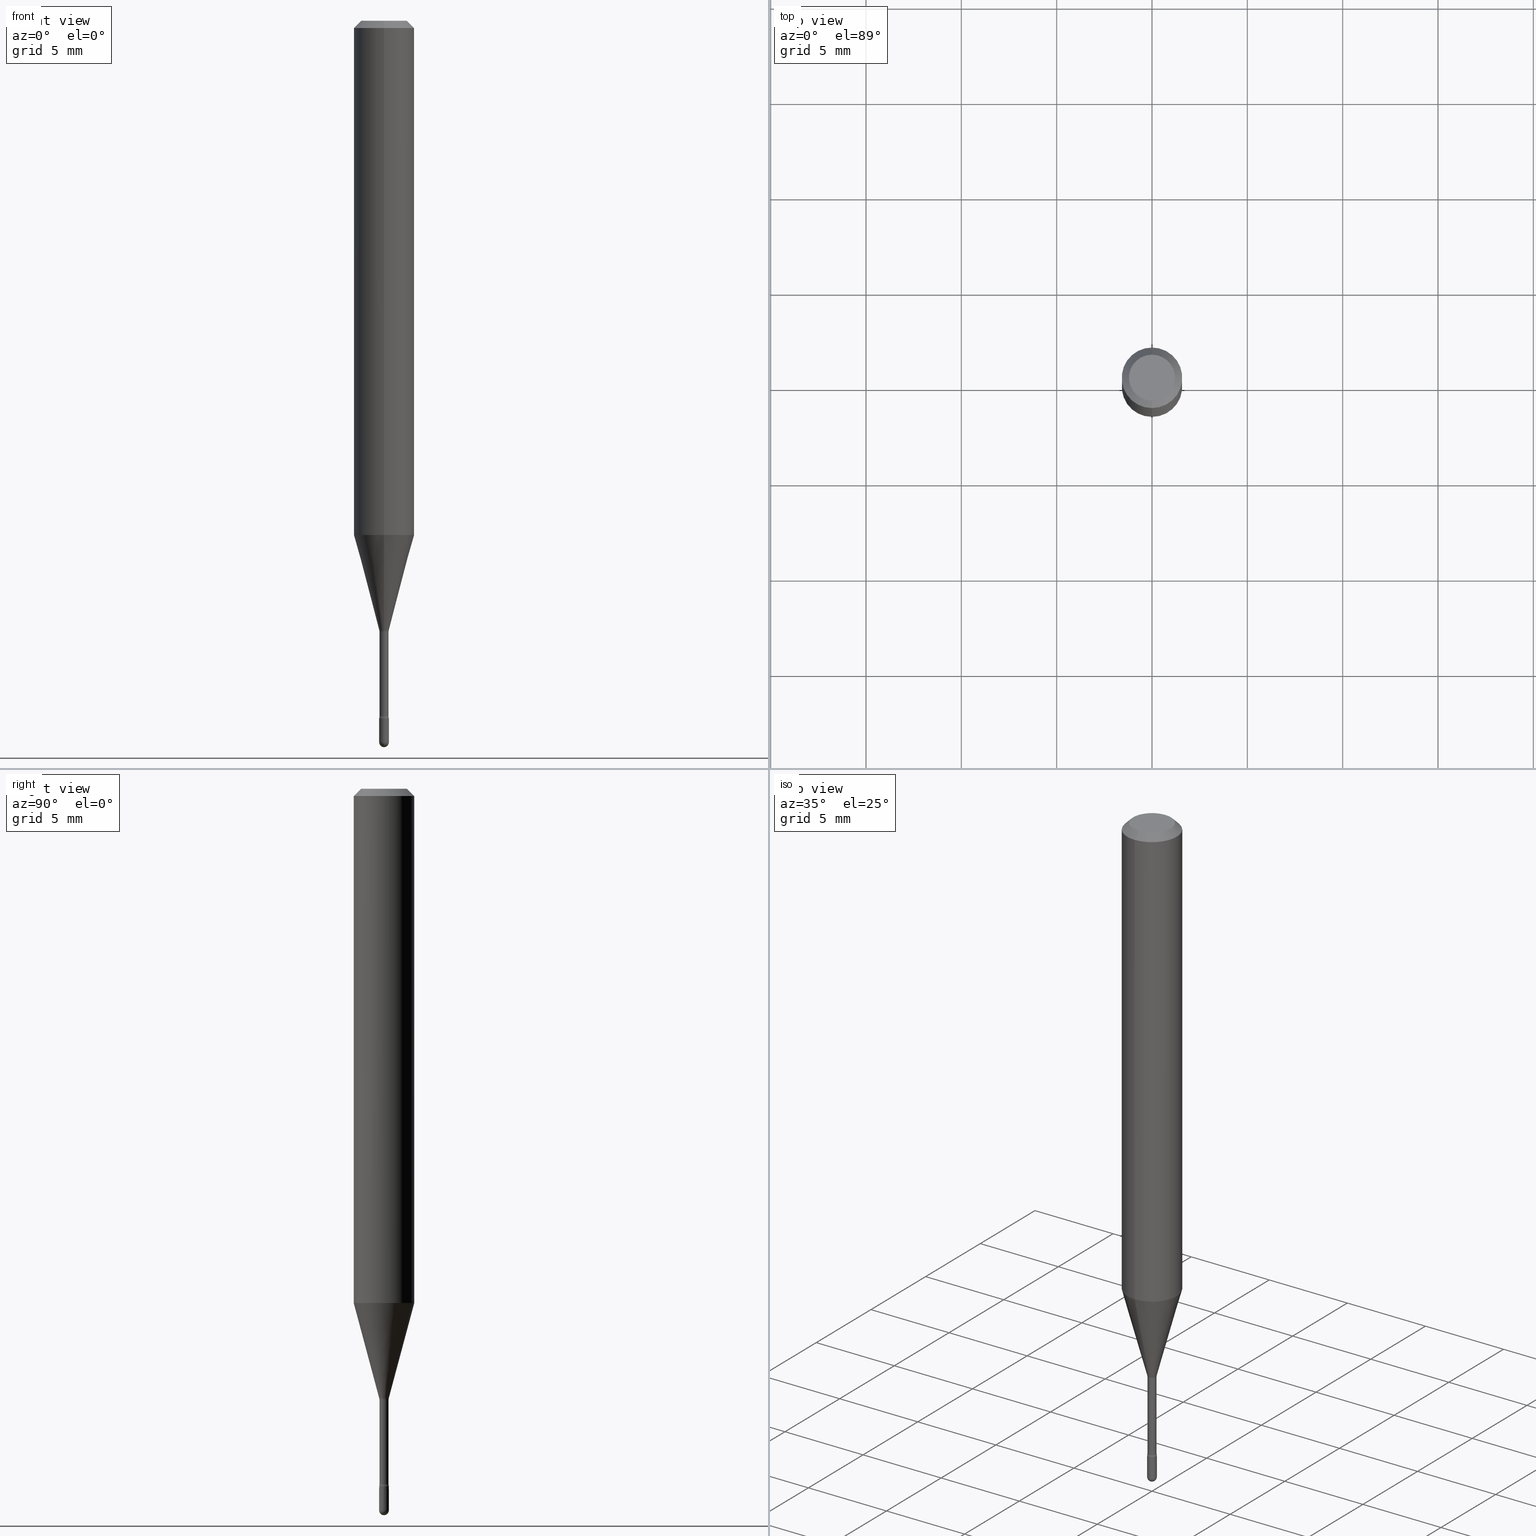
[diagram: canonical four-view strip — front | top / right | iso, engineering-drawing reading convention]
A machine part, canonical four-view strip (front | top / right | iso — engineering-drawing reading convention). The complete STEP part file that produces these views, byte-faithful:
ISO-10303-21;
HEADER;
FILE_DESCRIPTION (( 'STEP AP203' ),
    '1' );
FILE_NAME ('04568.STEP',
    '2024-04-09T22:00:09',
    ( '' ),
    ( '' ),
    'SwSTEP 2.0',
    'SolidWorks 2023',
    '' );
FILE_SCHEMA (( 'CONFIG_CONTROL_DESIGN' ));
ENDSEC;

DATA;
#1 = DIRECTION ( 'NONE',  ( 1.000000000000000000, -6.982962677686235945E-15, 0.000000000000000000 ) ) ;
#2 = PLANE ( 'NONE',  #291 ) ;
#3 = DIMENSIONAL_EXPONENTS ( 1.000000000000000000, 0.000000000000000000, 0.000000000000000000, 0.000000000000000000, 0.000000000000000000, 0.000000000000000000, 0.000000000000000000 ) ;
#4 = CARTESIAN_POINT ( 'NONE',  ( 3.521475080906597305E-29, -5.027733127934130649E-15, -1.440000000000000169 ) ) ;
#5 = CC_DESIGN_PERSON_AND_ORGANIZATION_ASSIGNMENT ( #52, #392, ( #372 ) ) ;
#6 = DIRECTION ( 'NONE',  ( 1.000000000000000000, -6.982962677686265922E-15, 4.876176775795935793E-29 ) ) ;
#7 = CIRCLE ( 'NONE', #519, 0.01000000000000000021 ) ;
#8 = ORIENTED_EDGE ( 'NONE', *, *, #242, .F. ) ;
#9 = CIRCLE ( 'NONE', #414, 0.01000000000000000021 ) ;
#10 = CARTESIAN_POINT ( 'NONE',  ( -1.703842893355140225E-16, -0.02440000000000440775, -1.261974787463811198 ) ) ;
#11 = ADVANCED_FACE ( 'NONE', ( #312 ), #396, .T. ) ;
#12 = AXIS2_PLACEMENT_3D ( 'NONE', #558, #160, #455 ) ;
#13 = APPROVAL ( #308, 'UNSPECIFIED' ) ;
#14 = AXIS2_PLACEMENT_3D ( 'NONE', #177, #132, #478 ) ;
#15 = AXIS2_PLACEMENT_3D ( 'NONE', #487, #140, #540 ) ;
#16 = DIRECTION ( 'NONE',  ( 1.000000000000000000, -7.105427357601001070E-15, 4.926313775280746513E-29 ) ) ;
#17 = CARTESIAN_POINT ( 'NONE',  ( 6.982962677689787249E-17, 0.009999999999994971245, -1.440000000000000169 ) ) ;
#18 = ORIENTED_EDGE ( 'NONE', *, *, #63, .F. ) ;
#19 = EDGE_CURVE ( 'NONE', #24, #464, #66, .T. ) ;
#20 = EDGE_LOOP ( 'NONE', ( #174, #342, #142, #534 ) ) ;
#21 = AXIS2_PLACEMENT_3D ( 'NONE', #419, #287, #6 ) ;
#22 = FACE_OUTER_BOUND ( 'NONE', #20, .T. ) ;
#23 = CYLINDRICAL_SURFACE ( 'NONE', #50, 0.01000000000000000021 ) ;
#24 = VERTEX_POINT ( 'NONE', #29 ) ;
#25 = EDGE_LOOP ( 'NONE', ( #361, #94, #279, #454 ) ) ;
#26 = CARTESIAN_POINT ( 'NONE',  ( -4.364351673553657356E-16, -0.06250000000000371925, -1.061828102118092865 ) ) ;
#27 = DIRECTION ( 'NONE',  ( -6.982962677686265922E-15, -1.000000000000000000, 3.491339807314435149E-15 ) ) ;
#28 = VERTEX_POINT ( 'NONE', #195 ) ;
#29 = CARTESIAN_POINT ( 'NONE',  ( 2.572559502513342919E-16, 0.009911112605659591623, -1.258092501787273276 ) ) ;
#30 = FACE_OUTER_BOUND ( 'NONE', #49, .T. ) ;
#31 = ORIENTED_EDGE ( 'NONE', *, *, #36, .T. ) ;
#32 = ORIENTED_EDGE ( 'NONE', *, *, #479, .F. ) ;
#33 = CIRCLE ( 'NONE', #304, 0.01500000000000003240 ) ;
#34 = CIRCLE ( 'NONE', #42, 0.009911112605663983943 ) ;
#35 = FACE_OUTER_BOUND ( 'NONE', #183, .T. ) ;
#36 = EDGE_CURVE ( 'NONE', #198, #250, #318, .T. ) ;
#37 = VERTEX_POINT ( 'NONE', #449 ) ;
#38 = PRODUCT_RELATED_PRODUCT_CATEGORY ( 'detail', '', ( #207 ) ) ;
#39 = CLOSED_SHELL ( 'NONE', ( #45, #437, #467, #219, #133 ) ) ;
#40 = CARTESIAN_POINT ( 'NONE',  ( 4.440892098500884514E-16, 0.06249999999999629463, -1.061828102118093309 ) ) ;
#41 = AXIS2_PLACEMENT_3D ( 'NONE', #326, #505, #116 ) ;
#42 = AXIS2_PLACEMENT_3D ( 'NONE', #293, #330, #288 ) ;
#43 = ADVANCED_FACE ( 'NONE', ( #367 ), #283, .F. ) ;
#44 = AXIS2_PLACEMENT_3D ( 'NONE', #48, #384, #125 ) ;
#45 = ADVANCED_FACE ( 'NONE', ( #189 ), #565, .T. ) ;
#46 = CC_DESIGN_SECURITY_CLASSIFICATION ( #306, ( #372 ) ) ;
#47 = CARTESIAN_POINT ( 'NONE',  ( -6.920892941966669973E-17, -0.009911112605668376263, -1.258092501787273276 ) ) ;
#48 = CARTESIAN_POINT ( 'NONE',  ( 3.086119976934868225E-29, -4.406161420520441844E-15, -1.261974787463811198 ) ) ;
#49 = EDGE_LOOP ( 'NONE', ( #260, #65, #213, #8 ) ) ;
#50 = AXIS2_PLACEMENT_3D ( 'NONE', #453, #102, #395 ) ;
#51 = EDGE_CURVE ( 'NONE', #198, #321, #381, .T. ) ;
#52 = PERSON_AND_ORGANIZATION ( #72, #90 ) ;
#53 = DIRECTION ( 'NONE',  ( -6.982962677686269866E-15, -1.000000000000000000, 0.000000000000000000 ) ) ;
#54 = CARTESIAN_POINT ( 'NONE',  ( 3.086244699087185393E-29, -4.405982811299579064E-15, -1.261974787463811198 ) ) ;
#55 = PRODUCT_DEFINITION ( 'UNKNOWN', '', #372, #335 ) ;
#56 = CARTESIAN_POINT ( 'NONE',  ( 6.892264536876495998E-17, 0.009399999999994973141, -1.435799999999999965 ) ) ;
#57 = DIRECTION ( 'NONE',  ( 6.982962677686265922E-15, 1.000000000000000000, -3.483106191921935554E-15 ) ) ;
#58 = CARTESIAN_POINT ( 'NONE',  ( 4.440892098500625669E-16, 0.06250000000000000000, 2.598646609340937925E-16 ) ) ;
#59 = DIRECTION ( 'NONE',  ( -2.445567637123405880E-29, 3.491339807314436332E-15, 1.000000000000000000 ) ) ;
#60 = ORIENTED_EDGE ( 'NONE', *, *, #508, .T. ) ;
#61 = AXIS2_PLACEMENT_3D ( 'NONE', #113, #441, #336 ) ;
#62 = AXIS2_PLACEMENT_3D ( 'NONE', #270, #97, #497 ) ;
#63 = EDGE_CURVE ( 'NONE', #250, #130, #82, .T. ) ;
#64 = DIRECTION ( 'NONE',  ( -6.982962677686265922E-15, -1.000000000000000000, 3.483106191921935554E-15 ) ) ;
#65 = ORIENTED_EDGE ( 'NONE', *, *, #500, .T. ) ;
#66 = LINE ( 'NONE', #491, #421 ) ;
#67 = CARTESIAN_POINT ( 'NONE',  ( 3.643748521215853910E-29, -5.202307194876288105E-15, -1.490000000000000213 ) ) ;
#68 = CARTESIAN_POINT ( 'NONE',  ( -6.563984917025085146E-17, -0.009399999999999993430, 5.108919930800017380E-16 ) ) ;
#69 = ORIENTED_EDGE ( 'NONE', *, *, #87, .T. ) ;
#70 = EDGE_CURVE ( 'NONE', #28, #320, #337, .T. ) ;
#71 = ORIENTED_EDGE ( 'NONE', *, *, #281, .T. ) ;
#72 = PERSON ( 'UNSPECIFIED', 'UNSPECIFIED', 'UNSPECIFIED', ('UNSPECIFIED'), ('UNSPECIFIED'), ('UNSPECIFIED') ) ;
#73 = LOCAL_TIME ( 18, 0, 9.000000000000000000, #223 ) ;
#74 = EDGE_CURVE ( 'NONE', #458, #464, #422, .T. ) ;
#75 = ORIENTED_EDGE ( 'NONE', *, *, #557, .F. ) ;
#76 = CARTESIAN_POINT ( 'NONE',  ( -6.920892941966669973E-17, -0.009911112605668376263, -1.258092501787273276 ) ) ;
#77 =( LENGTH_UNIT ( ) NAMED_UNIT ( * ) SI_UNIT ( $, .METRE. ) );
#78 = EDGE_CURVE ( 'NONE', #307, #158, #245, .T. ) ;
#79 =( CONVERSION_BASED_UNIT ( 'INCH', #420 ) LENGTH_UNIT ( ) NAMED_UNIT ( #3 ) );
#80 = VECTOR ( 'NONE', #528, 39.37007874015748143 ) ;
#81 = CIRCLE ( 'NONE', #178, 0.01500000000000003240 ) ;
#82 = LINE ( 'NONE', #243, #346 ) ;
#83 = EDGE_LOOP ( 'NONE', ( #69, #374, #221, #104 ) ) ;
#84 = DATE_AND_TIME ( #473, #465 ) ;
#85 = EDGE_CURVE ( 'NONE', #316, #158, #126, .T. ) ;
#86 = CARTESIAN_POINT ( 'NONE',  ( 2.596772442728175058E-29, -3.707202721450037054E-15, -1.061828102118093087 ) ) ;
#87 = EDGE_CURVE ( 'NONE', #227, #316, #564, .T. ) ;
#88 = AXIS2_PLACEMENT_3D ( 'NONE', #445, #448, #27 ) ;
#89 = CARTESIAN_POINT ( 'NONE',  ( 6.679101716144937079E-17, 0.009399999999999993430, 4.452548047024903884E-16 ) ) ;
#90 = ORGANIZATION ( 'UNSPECIFIED', 'UNSPECIFIED', '' ) ;
#91 = DATE_AND_TIME ( #535, #259 ) ;
#92 = DIRECTION ( 'NONE',  ( -2.445468806185136877E-29, 3.491481338843145188E-15, 1.000000000000000000 ) ) ;
#93 = EDGE_CURVE ( 'NONE', #37, #253, #122, .T. ) ;
#94 = ORIENTED_EDGE ( 'NONE', *, *, #538, .F. ) ;
#95 = CONICAL_SURFACE ( 'NONE', #369, 0.009911112605663983943, 0.2617993877991496854 ) ;
#96 = PERSON_AND_ORGANIZATION_ROLE ( 'classification_officer' ) ;
#97 = DIRECTION ( 'NONE',  ( 1.000000000000000000, -7.105427357601001070E-15, 4.926313775280746513E-29 ) ) ;
#98 = CARTESIAN_POINT ( 'NONE',  ( 6.679101716148456138E-17, 0.009399999999995595906, -1.261974787463811198 ) ) ;
#99 = CARTESIAN_POINT ( 'NONE',  ( 3.668351455685129279E-31, -5.237009710971683760E-17, -0.01500000000000008271 ) ) ;
#100 = ORIENTED_EDGE ( 'NONE', *, *, #244, .T. ) ;
#101 = EDGE_CURVE ( 'NONE', #237, #143, #7, .T. ) ;
#102 = DIRECTION ( 'NONE',  ( -2.445468806185136597E-29, 3.491481338843145583E-15, 1.000000000000000000 ) ) ;
#103 = ORIENTED_EDGE ( 'NONE', *, *, #385, .T. ) ;
#104 = ORIENTED_EDGE ( 'NONE', *, *, #179, .F. ) ;
#105 = CLOSED_SHELL ( 'NONE', ( #290, #11, #383, #343, #172, #340, #203, #492, #138, #240, #109, #332, #405, #43 ) ) ;
#106 = AXIS2_PLACEMENT_3D ( 'NONE', #435, #348, #533 ) ;
#107 = AXIS2_PLACEMENT_3D ( 'NONE', #86, #428, #252 ) ;
#108 = AXIS2_PLACEMENT_3D ( 'NONE', #163, #334, #563 ) ;
#109 = ADVANCED_FACE ( 'NONE', ( #311 ), #323, .F. ) ;
#110 = DIRECTION ( 'NONE',  ( -2.445567637123405880E-29, 3.491339807314436332E-15, 1.000000000000000000 ) ) ;
#111 = ORIENTED_EDGE ( 'NONE', *, *, #363, .T. ) ;
#112 = CYLINDRICAL_SURFACE ( 'NONE', #322, 0.009399999999999993430 ) ;
#113 = CARTESIAN_POINT ( 'NONE',  ( 3.643748521215853910E-29, -5.202307194876288105E-15, -1.490000000000000213 ) ) ;
#114 = ORIENTED_EDGE ( 'NONE', *, *, #479, .T. ) ;
#115 = UNCERTAINTY_MEASURE_WITH_UNIT (LENGTH_MEASURE( 1.000000000000000082E-05 ), #79, 'distance_accuracy_value', 'NONE');
#116 = DIRECTION ( 'NONE',  ( -6.982962677686266711E-15, -1.000000000000000000, 3.491339807314436727E-15 ) ) ;
#117 = DATE_TIME_ROLE ( 'creation_date' ) ;
#118 = CIRCLE ( 'NONE', #432, 0.01500000000000002720 ) ;
#119 = CARTESIAN_POINT ( 'NONE',  ( 3.643748521215853910E-29, -5.202307194876288105E-15, -1.490000000000000213 ) ) ;
#120 = DIRECTION ( 'NONE',  ( -6.982962677686266711E-15, -1.000000000000000000, 3.491339807314436727E-15 ) ) ;
#121 = DIRECTION ( 'NONE',  ( 1.000000000000000000, -6.982962677686265922E-15, 4.876176775795935793E-29 ) ) ;
#122 = CIRCLE ( 'NONE', #106, 0.01000000000000000021 ) ;
#123 = APPROVAL_PERSON_ORGANIZATION ( #517, #524, #338 ) ;
#124 = DIRECTION ( 'NONE',  ( 4.937700262164548042E-15, 0.7071067811865451302, -0.7071067811865499042 ) ) ;
#125 = DIRECTION ( 'NONE',  ( -6.982962677686265922E-15, -1.000000000000000000, 3.491339807314436332E-15 ) ) ;
#126 = LINE ( 'NONE', #89, #80 ) ;
#127 = DIRECTION ( 'NONE',  ( 0.000000000000000000, 0.000000000000000000, 1.000000000000000000 ) ) ;
#128 = CIRCLE ( 'NONE', #275, 0.01000000000000000021 ) ;
#129 = ORIENTED_EDGE ( 'NONE', *, *, #484, .T. ) ;
#130 = VERTEX_POINT ( 'NONE', #147 ) ;
#131 = DIRECTION ( 'NONE',  ( 1.000000000000000000, -6.982962677686235945E-15, 0.000000000000000000 ) ) ;
#132 = DIRECTION ( 'NONE',  ( -2.445567637123405880E-29, 3.491339807314436332E-15, 1.000000000000000000 ) ) ;
#133 = ADVANCED_FACE ( 'NONE', ( #314 ), #23, .T. ) ;
#134 = PERSON_AND_ORGANIZATION_ROLE ( 'design_supplier' ) ;
#135 = ORIENTED_EDGE ( 'NONE', *, *, #391, .F. ) ;
#136 = AXIS2_PLACEMENT_3D ( 'NONE', #17, #545, #141 ) ;
#137 = APPROVAL_PERSON_ORGANIZATION ( #542, #13, #389 ) ;
#138 = ADVANCED_FACE ( 'NONE', ( #490 ), #463, .T. ) ;
#139 = PERSON_AND_ORGANIZATION ( #72, #90 ) ;
#140 = DIRECTION ( 'NONE',  ( -2.445567637123405880E-29, 3.491339807314436332E-15, 1.000000000000000000 ) ) ;
#141 = DIRECTION ( 'NONE',  ( -6.982962677686265922E-15, -1.000000000000000000, 3.491339807314436332E-15 ) ) ;
#142 = ORIENTED_EDGE ( 'NONE', *, *, #179, .T. ) ;
#143 = VERTEX_POINT ( 'NONE', #182 ) ;
#144 = PERSON_AND_ORGANIZATION ( #72, #90 ) ;
#145 = APPROVAL ( #309, 'UNSPECIFIED' ) ;
#146 = FACE_OUTER_BOUND ( 'NONE', #388, .T. ) ;
#147 = CARTESIAN_POINT ( 'NONE',  ( 4.440892098500887472E-16, 0.06249999999999995837, -0.01500000000000030129 ) ) ;
#148 = ORIENTED_EDGE ( 'NONE', *, *, #74, .T. ) ;
#149 = PERSON_AND_ORGANIZATION ( #72, #90 ) ;
#150 = CARTESIAN_POINT ( 'NONE',  ( 1.733724275254997086E-16, 0.02439999999999501248, -1.435799999999999965 ) ) ;
#151 = ORIENTED_EDGE ( 'NONE', *, *, #93, .F. ) ;
#152 = AXIS2_PLACEMENT_3D ( 'NONE', #99, #263, #64 ) ;
#153 = CIRCLE ( 'NONE', #62, 0.01500000000000002720 ) ;
#154 = PERSON_AND_ORGANIZATION ( #72, #90 ) ;
#155 = DIRECTION ( 'NONE',  ( -6.982962677686265922E-15, -1.000000000000000000, 3.483106191921935554E-15 ) ) ;
#156 = FACE_OUTER_BOUND ( 'NONE', #504, .T. ) ;
#157 = FACE_OUTER_BOUND ( 'NONE', #402, .T. ) ;
#158 = VERTEX_POINT ( 'NONE', #98 ) ;
#159 = DIRECTION ( 'NONE',  ( -2.445468806185136597E-29, 3.491481338843145583E-15, 1.000000000000000000 ) ) ;
#160 = DIRECTION ( 'NONE',  ( -2.445567637123405880E-29, 3.491339807314436332E-15, 1.000000000000000000 ) ) ;
#161 = CARTESIAN_POINT ( 'NONE',  ( 3.643748521215853910E-29, -5.202307194876288105E-15, -1.490000000000000213 ) ) ;
#162 = VECTOR ( 'NONE', #394, 39.37007874015748143 ) ;
#163 = CARTESIAN_POINT ( 'NONE',  ( -1.169113584055446105E-44, 1.669184350826100908E-30, 4.780733988912460139E-16 ) ) ;
#164 = EDGE_CURVE ( 'NONE', #130, #321, #451, .T. ) ;
#165 = CARTESIAN_POINT ( 'NONE',  ( 3.521475080906597305E-29, -5.027733127934130649E-15, -1.440000000000000169 ) ) ;
#166 = DIRECTION ( 'NONE',  ( -2.445567637123405880E-29, 3.491339807314436332E-15, 1.000000000000000000 ) ) ;
#167 = PRODUCT_DEFINITION_SHAPE ( 'NONE', 'NONE',  #55 ) ;
#168 = AXIS2_PLACEMENT_3D ( 'NONE', #161, #159, #536 ) ;
#169 = AXIS2_PLACEMENT_3D ( 'NONE', #523, #127, #480 ) ;
#170 = DIRECTION ( 'NONE',  ( -1.000000000000000000, 7.105427357601001070E-15, -4.926315508542082329E-29 ) ) ;
#171 = ORIENTED_EDGE ( 'NONE', *, *, #51, .T. ) ;
#172 = ADVANCED_FACE ( 'NONE', ( #498 ), #266, .T. ) ;
#173 = DIRECTION ( 'NONE',  ( -6.982962677686265133E-15, -1.000000000000000000, 0.000000000000000000 ) ) ;
#174 = ORIENTED_EDGE ( 'NONE', *, *, #85, .F. ) ;
#175 = EDGE_CURVE ( 'NONE', #316, #227, #470, .T. ) ;
#176 = VECTOR ( 'NONE', #426, 39.37007874015748143 ) ;
#177 = CARTESIAN_POINT ( 'NONE',  ( 3.511346013381786703E-29, -5.012865695342067966E-15, -1.435799999999999965 ) ) ;
#178 = AXIS2_PLACEMENT_3D ( 'NONE', #150, #16, #502 ) ;
#179 = EDGE_CURVE ( 'NONE', #227, #307, #277, .T. ) ;
#180 = DIRECTION ( 'NONE',  ( -2.445567637123405880E-29, 3.491339807314436332E-15, 1.000000000000000000 ) ) ;
#181 = DIRECTION ( 'NONE',  ( -1.000000000000000000, 6.982962677686265133E-15, -4.883557194083112340E-29 ) ) ;
#182 = CARTESIAN_POINT ( 'NONE',  ( 7.105427357604538322E-17, 0.009999999999994993796, -1.440000000000000169 ) ) ;
#183 = EDGE_LOOP ( 'NONE', ( #359, #488, #552, #461 ) ) ;
#184 = DATE_AND_TIME ( #393, #73 ) ;
#185 = MANIFOLD_SOLID_BREP ( 'Body-Move/Copy2[1]', #39 ) ;
#186 = CARTESIAN_POINT ( 'NONE',  ( -6.563984917021568552E-17, -0.009400000000004999842, -1.435799999999999965 ) ) ;
#187 = TOROIDAL_SURFACE ( 'NONE', #510, 0.02440000000000002237, 0.01500000000000003587 ) ;
#188 = ORIENTED_EDGE ( 'NONE', *, *, #202, .T. ) ;
#189 = FACE_OUTER_BOUND ( 'NONE', #345, .T. ) ;
#190 = APPLICATION_CONTEXT ( 'configuration controlled 3d designs of mechanical parts and assemblies' ) ;
#191 = CARTESIAN_POINT ( 'NONE',  ( 3.668630792422295430E-29, -5.236609684865145574E-15, -1.500000000000000222 ) ) ;
#192 = CARTESIAN_POINT ( 'NONE',  ( 3.521617397457705611E-29, -5.027529322532788603E-15, -1.440000000000000169 ) ) ;
#193 = CARTESIAN_POINT ( 'NONE',  ( 3.511346013381786703E-29, -5.012865695342067966E-15, -1.435799999999999965 ) ) ;
#194 = ORIENTED_EDGE ( 'NONE', *, *, #274, .F. ) ;
#195 = CARTESIAN_POINT ( 'NONE',  ( 0.01000000000000000021, -5.097562754710993158E-15, -1.440000000000000169 ) ) ;
#196 = CARTESIAN_POINT ( 'NONE',  ( 0.01000000000000000021, -6.982962677686265724E-17, 4.876176775795935968E-31 ) ) ;
#197 = CARTESIAN_POINT ( 'NONE',  ( 3.076750306878576560E-29, -4.392428432773716738E-15, -1.258092501787273276 ) ) ;
#198 = VERTEX_POINT ( 'NONE', #225 ) ;
#199 = CIRCLE ( 'NONE', #168, 0.01000000000000000021 ) ;
#200 = AXIS2_PLACEMENT_3D ( 'NONE', #378, #416, #155 ) ;
#201 = ORIENTED_EDGE ( 'NONE', *, *, #508, .F. ) ;
#202 = EDGE_CURVE ( 'NONE', #158, #307, #209, .T. ) ;
#203 = ADVANCED_FACE ( 'NONE', ( #30 ), #95, .T. ) ;
#204 = CONICAL_SURFACE ( 'NONE', #531, 0.06250000000000000000, 0.7853981633974483900 ) ;
#205 = EDGE_CURVE ( 'NONE', #458, #321, #354, .T. ) ;
#206 = DIRECTION ( 'NONE',  ( 6.982962677686265922E-15, 1.000000000000000000, -3.491339807314436332E-15 ) ) ;
#207 = PRODUCT ( '04568', '04568', '', ( #296 ) ) ;
#208 = CC_DESIGN_PERSON_AND_ORGANIZATION_ASSIGNMENT ( #154, #376, ( #55 ) ) ;
#209 = CIRCLE ( 'NONE', #216, 0.009400000000000002104 ) ;
#210 = AXIS2_PLACEMENT_3D ( 'NONE', #443, #269, #450 ) ;
#211 = DIRECTION ( 'NONE',  ( -1.000000000000000000, 6.982962677686265922E-15, -4.883557194083112340E-29 ) ) ;
#212 = ORIENTED_EDGE ( 'NONE', *, *, #363, .F. ) ;
#213 = ORIENTED_EDGE ( 'NONE', *, *, #560, .T. ) ;
#214 = CARTESIAN_POINT ( 'NONE',  ( 6.982962677689890787E-17, 0.009999999999994771752, -1.490000000000000213 ) ) ;
#215 = ORIENTED_EDGE ( 'NONE', *, *, #391, .T. ) ;
#216 = AXIS2_PLACEMENT_3D ( 'NONE', #54, #370, #408 ) ;
#217 = CIRCLE ( 'NONE', #210, 0.009911112605663983943 ) ;
#218 = DIRECTION ( 'NONE',  ( -6.982962677686265922E-15, -1.000000000000000000, 3.491339807314436332E-15 ) ) ;
#219 = ADVANCED_FACE ( 'NONE', ( #157 ), #503, .T. ) ;
#220 = DIRECTION ( 'NONE',  ( -6.982962677686264344E-15, -1.000000000000000000, 0.000000000000000000 ) ) ;
#221 = ORIENTED_EDGE ( 'NONE', *, *, #78, .F. ) ;
#222 = MANIFOLD_SOLID_BREP ( 'Body-Move/Copy2[2]', #105 ) ;
#223 = COORDINATED_UNIVERSAL_TIME_OFFSET ( 5, 0, .BEHIND. ) ;
#224 = DIRECTION ( 'NONE',  ( -2.445567637123405880E-29, 3.491339807314436332E-15, 1.000000000000000000 ) ) ;
#225 = CARTESIAN_POINT ( 'NONE',  ( -3.773273898774340269E-16, -0.04749999999999999362, 8.308488602827664663E-17 ) ) ;
#226 = ORIENTED_EDGE ( 'NONE', *, *, #93, .T. ) ;
#227 = VERTEX_POINT ( 'NONE', #186 ) ;
#228 = AXIS2_PLACEMENT_3D ( 'NONE', #548, #554, #265 ) ;
#229 = DIRECTION ( 'NONE',  ( -2.445567637123405880E-29, 3.491339807314436332E-15, 1.000000000000000000 ) ) ;
#230 = ORIENTED_EDGE ( 'NONE', *, *, #205, .F. ) ;
#231 = DIRECTION ( 'NONE',  ( 6.982962677686265922E-15, 1.000000000000000000, 0.000000000000000000 ) ) ;
#232 = DIRECTION ( 'NONE',  ( -2.445567637123405880E-29, 3.491339807314436332E-15, 1.000000000000000000 ) ) ;
#233 = ORIENTED_EDGE ( 'NONE', *, *, #538, .T. ) ;
#234 =( NAMED_UNIT ( * ) PLANE_ANGLE_UNIT ( ) SI_UNIT ( $, .RADIAN. ) );
#235 = CARTESIAN_POINT ( 'NONE',  ( 3.643748521215853910E-29, -5.202307194876288105E-15, -1.490000000000000213 ) ) ;
#236 = FACE_OUTER_BOUND ( 'NONE', #315, .T. ) ;
#237 = VERTEX_POINT ( 'NONE', #247 ) ;
#238 = AXIS2_PLACEMENT_3D ( 'NONE', #165, #474, #1 ) ;
#239 = CC_DESIGN_APPROVAL ( #524, ( #372 ) ) ;
#240 = ADVANCED_FACE ( 'NONE', ( #236 ), #2, .F. ) ;
#241 = DIRECTION ( 'NONE',  ( -1.807323732225326195E-15, -0.2588190451025176309, 0.9659258262890690894 ) ) ;
#242 = EDGE_CURVE ( 'NONE', #464, #458, #541, .T. ) ;
#243 = CARTESIAN_POINT ( 'NONE',  ( 4.364351673553919652E-16, 0.06249999999999995143, -0.01500000000000030129 ) ) ;
#244 = EDGE_CURVE ( 'NONE', #278, #529, #199, .T. ) ;
#245 = CIRCLE ( 'NONE', #328, 0.009400000000000002104 ) ;
#246 = AXIS2_PLACEMENT_3D ( 'NONE', #235, #411, #131 ) ;
#247 = CARTESIAN_POINT ( 'NONE',  ( -6.982962677682758991E-17, -0.01000000000000504825, -1.440000000000000169 ) ) ;
#248 = APPROVAL_STATUS ( 'not_yet_approved' ) ;
#249 = CARTESIAN_POINT ( 'NONE',  ( 3.086119976934868225E-29, -4.406161420520441844E-15, -1.261974787463811198 ) ) ;
#250 = VERTEX_POINT ( 'NONE', #525 ) ;
#251 = ORIENTED_EDGE ( 'NONE', *, *, #36, .F. ) ;
#252 = DIRECTION ( 'NONE',  ( -6.982962677686265922E-15, -1.000000000000000000, 4.370956789862821150E-15 ) ) ;
#253 = VERTEX_POINT ( 'NONE', #436 ) ;
#254 = CC_DESIGN_PERSON_AND_ORGANIZATION_ASSIGNMENT ( #144, #96, ( #306 ) ) ;
#255 = CARTESIAN_POINT ( 'NONE',  ( 3.643748521215853910E-29, -5.202307194876288105E-15, -1.490000000000000213 ) ) ;
#256 = APPROVAL_DATE_TIME ( #91, #13 ) ;
#257 = VECTOR ( 'NONE', #92, 39.37007874015748143 ) ;
#258 = CARTESIAN_POINT ( 'NONE',  ( -1.703842893355099302E-16, -0.02440000000000503225, -1.435799999999999965 ) ) ;
#259 = LOCAL_TIME ( 18, 0, 9.000000000000000000, #351 ) ;
#260 = ORIENTED_EDGE ( 'NONE', *, *, #19, .F. ) ;
#261 = EDGE_CURVE ( 'NONE', #546, #253, #357, .T. ) ;
#262 = SPHERICAL_SURFACE ( 'NONE', #399, 0.009999999999999946432 ) ;
#263 = DIRECTION ( 'NONE',  ( -2.445567637123405880E-29, 3.491339807314436332E-15, 1.000000000000000000 ) ) ;
#264 = EDGE_LOOP ( 'NONE', ( #355, #553, #71, #413 ) ) ;
#265 = DIRECTION ( 'NONE',  ( -6.982962677686264344E-15, -1.000000000000000000, 0.000000000000000000 ) ) ;
#266 = CYLINDRICAL_SURFACE ( 'NONE', #88, 0.06250000000000000000 ) ;
#267 = ORIENTED_EDGE ( 'NONE', *, *, #281, .F. ) ;
#268 = DIRECTION ( 'NONE',  ( 1.839019923739596371E-15, 0.2588190451025244032, 0.9659258262890673130 ) ) ;
#269 = DIRECTION ( 'NONE',  ( -2.445567637123405880E-29, 3.491339807314436332E-15, 1.000000000000000000 ) ) ;
#270 = CARTESIAN_POINT ( 'NONE',  ( 1.733724275254952959E-16, 0.02439999999999559535, -1.261974787463811198 ) ) ;
#271 = DIRECTION ( 'NONE',  ( 2.445567637123405880E-29, -3.491339807314436332E-15, -1.000000000000000000 ) ) ;
#272 = ORIENTED_EDGE ( 'NONE', *, *, #70, .F. ) ;
#273 = ORIENTED_EDGE ( 'NONE', *, *, #244, .F. ) ;
#274 = EDGE_CURVE ( 'NONE', #37, #320, #482, .T. ) ;
#275 = AXIS2_PLACEMENT_3D ( 'NONE', #192, #224, #447 ) ;
#276 = FACE_OUTER_BOUND ( 'NONE', #366, .T. ) ;
#277 = LINE ( 'NONE', #68, #412 ) ;
#278 = VERTEX_POINT ( 'NONE', #429 ) ;
#279 = ORIENTED_EDGE ( 'NONE', *, *, #301, .T. ) ;
#280 = EDGE_LOOP ( 'NONE', ( #344, #362, #188, #401 ) ) ;
#281 = EDGE_CURVE ( 'NONE', #227, #237, #33, .T. ) ;
#282 = ORIENTED_EDGE ( 'NONE', *, *, #550, .F. ) ;
#283 = TOROIDAL_SURFACE ( 'NONE', #297, 0.02440000000000000155, 0.01500000000000002373 ) ;
#284 = LOCAL_TIME ( 18, 0, 9.000000000000000000, #501 ) ;
#285 = DIRECTION ( 'NONE',  ( -2.445468806185136597E-29, 3.491481338843145583E-15, 1.000000000000000000 ) ) ;
#286 = CARTESIAN_POINT ( 'NONE',  ( 2.596772442728175058E-29, -3.707202721450037054E-15, -1.061828102118093087 ) ) ;
#287 = DIRECTION ( 'NONE',  ( -2.445468806185136597E-29, 3.491481338843145583E-15, 1.000000000000000000 ) ) ;
#288 = DIRECTION ( 'NONE',  ( -6.982962677686264344E-15, -1.000000000000000000, 0.000000000000000000 ) ) ;
#289 = PLANE ( 'NONE',  #566 ) ;
#290 = ADVANCED_FACE ( 'NONE', ( #295 ), #386, .F. ) ;
#291 = AXIS2_PLACEMENT_3D ( 'NONE', #377, #425, #206 ) ;
#292 = CC_DESIGN_APPROVAL ( #13, ( #55 ) ) ;
#293 = CARTESIAN_POINT ( 'NONE',  ( 3.076750306878576560E-29, -4.392428432773716738E-15, -1.258092501787273276 ) ) ;
#294 = DIRECTION ( 'NONE',  ( -6.982962677686265922E-15, -1.000000000000000000, 3.491339807314436332E-15 ) ) ;
#295 = FACE_OUTER_BOUND ( 'NONE', #280, .T. ) ;
#296 = MECHANICAL_CONTEXT ( 'NONE', #333, 'mechanical' ) ;
#297 = AXIS2_PLACEMENT_3D ( 'NONE', #249, #511, #294 ) ;
#298 = LOCAL_TIME ( 18, 0, 9.000000000000000000, #561 ) ;
#299 = EDGE_LOOP ( 'NONE', ( #341, #32, #406, #349 ) ) ;
#300 = ORIENTED_EDGE ( 'NONE', *, *, #261, .F. ) ;
#301 = EDGE_CURVE ( 'NONE', #526, #307, #118, .T. ) ;
#302 = ORIENTED_EDGE ( 'NONE', *, *, #550, .T. ) ;
#303 = APPLICATION_PROTOCOL_DEFINITION ( 'international standard', 'config_control_design', 1994, #190 ) ;
#304 = AXIS2_PLACEMENT_3D ( 'NONE', #258, #211, #53 ) ;
#305 = LINE ( 'NONE', #58, #532 ) ;
#306 = SECURITY_CLASSIFICATION ( '', '', #486 ) ;
#307 = VERTEX_POINT ( 'NONE', #527 ) ;
#308 = APPROVAL_STATUS ( 'not_yet_approved' ) ;
#309 = APPROVAL_STATUS ( 'not_yet_approved' ) ;
#310 = CARTESIAN_POINT ( 'NONE',  ( 3.511204111920619566E-29, -5.013068906310988441E-15, -1.435799999999999965 ) ) ;
#311 = FACE_OUTER_BOUND ( 'NONE', #530, .T. ) ;
#312 = FACE_OUTER_BOUND ( 'NONE', #83, .T. ) ;
#313 = DIRECTION ( 'NONE',  ( -6.982962677686265922E-15, -1.000000000000000000, 3.491339807314433966E-15 ) ) ;
#314 = FACE_OUTER_BOUND ( 'NONE', #433, .T. ) ;
#315 = EDGE_LOOP ( 'NONE', ( #114, #31 ) ) ;
#316 = VERTEX_POINT ( 'NONE', #56 ) ;
#317 = CARTESIAN_POINT ( 'NONE',  ( -4.364351673553912750E-16, -0.06250000000000005551, -0.01499999999999986587 ) ) ;
#318 = CIRCLE ( 'NONE', #41, 0.04749999999999999362 ) ;
#319 = AXIS2_PLACEMENT_3D ( 'NONE', #551, #271, #57 ) ;
#320 = VERTEX_POINT ( 'NONE', #456 ) ;
#321 = VERTEX_POINT ( 'NONE', #317 ) ;
#322 = AXIS2_PLACEMENT_3D ( 'NONE', #460, #229, #313 ) ;
#323 = PLANE ( 'NONE',  #136 ) ;
#324 = EDGE_LOOP ( 'NONE', ( #135, #431, #151, #201 ) ) ;
#325 = EDGE_CURVE ( 'NONE', #278, #28, #360, .T. ) ;
#326 = CARTESIAN_POINT ( 'NONE',  ( 2.024271530787545321E-45, -2.888538159458885952E-31, -8.275375481915906387E-17 ) ) ;
#327 = CALENDAR_DATE ( 2024, 9, 4 ) ;
#328 = AXIS2_PLACEMENT_3D ( 'NONE', #329, #513, #475 ) ;
#329 = CARTESIAN_POINT ( 'NONE',  ( 3.086244699087185393E-29, -4.405982811299579064E-15, -1.261974787463811198 ) ) ;
#330 = DIRECTION ( 'NONE',  ( -2.445567637123405880E-29, 3.491339807314436332E-15, 1.000000000000000000 ) ) ;
#331 = DIRECTION ( 'NONE',  ( -2.445468806185136597E-29, 3.491481338843145583E-15, 1.000000000000000000 ) ) ;
#332 = ADVANCED_FACE ( 'NONE', ( #444 ), #187, .F. ) ;
#333 = APPLICATION_CONTEXT ( 'configuration controlled 3d designs of mechanical parts and assemblies' ) ;
#334 = DIRECTION ( 'NONE',  ( -2.445567637123405880E-29, 3.491339807314436332E-15, 1.000000000000000000 ) ) ;
#335 = DESIGN_CONTEXT ( 'detailed design', #190, 'design' ) ;
#336 = DIRECTION ( 'NONE',  ( 6.982962677686265133E-15, 1.000000000000000000, 0.000000000000000000 ) ) ;
#337 = CIRCLE ( 'NONE', #238, 0.01000000000000000021 ) ;
#338 = APPROVAL_ROLE ( '' ) ;
#339 = CIRCLE ( 'NONE', #471, 0.04749999999999999362 ) ;
#340 = ADVANCED_FACE ( 'NONE', ( #276 ), #476, .T. ) ;
#341 = ORIENTED_EDGE ( 'NONE', *, *, #51, .F. ) ;
#342 = ORIENTED_EDGE ( 'NONE', *, *, #175, .T. ) ;
#343 = ADVANCED_FACE ( 'NONE', ( #146 ), #204, .T. ) ;
#344 = ORIENTED_EDGE ( 'NONE', *, *, #500, .F. ) ;
#345 = EDGE_LOOP ( 'NONE', ( #60, #499, #272, #494, #100 ) ) ;
#346 = VECTOR ( 'NONE', #124, 39.37007874015748143 ) ;
#347 = AXIS2_PLACEMENT_3D ( 'NONE', #353, #358, #231 ) ;
#348 = DIRECTION ( 'NONE',  ( -2.445468806185136597E-29, 3.491481338843145583E-15, 1.000000000000000000 ) ) ;
#349 = ORIENTED_EDGE ( 'NONE', *, *, #164, .T. ) ;
#350 = ORIENTED_EDGE ( 'NONE', *, *, #19, .T. ) ;
#351 = COORDINATED_UNIVERSAL_TIME_OFFSET ( 5, 0, .BEHIND. ) ;
#352 = CC_DESIGN_PERSON_AND_ORGANIZATION_ASSIGNMENT ( #149, #481, ( #207 ) ) ;
#353 = CARTESIAN_POINT ( 'NONE',  ( 3.643748521215853910E-29, -5.202307194876288105E-15, -1.490000000000000213 ) ) ;
#354 = LINE ( 'NONE', #400, #398 ) ;
#355 = ORIENTED_EDGE ( 'NONE', *, *, #385, .F. ) ;
#356 = DATE_TIME_ROLE ( 'classification_date' ) ;
#357 = CIRCLE ( 'NONE', #483, 0.009999999999999946432 ) ;
#358 = DIRECTION ( 'NONE',  ( 1.000000000000000000, -6.982962677686265922E-15, 4.883557194083112340E-29 ) ) ;
#359 = ORIENTED_EDGE ( 'NONE', *, *, #403, .F. ) ;
#360 = LINE ( 'NONE', #196, #162 ) ;
#361 = ORIENTED_EDGE ( 'NONE', *, *, #430, .F. ) ;
#362 = ORIENTED_EDGE ( 'NONE', *, *, #430, .T. ) ;
#363 = EDGE_CURVE ( 'NONE', #143, #237, #128, .T. ) ;
#364 = DIRECTION ( 'NONE',  ( 2.445567637123405880E-29, -3.491339807314436332E-15, -1.000000000000000000 ) ) ;
#365 = DIRECTION ( 'NONE',  ( -6.982962677686265922E-15, -1.000000000000000000, 0.000000000000000000 ) ) ;
#366 = EDGE_LOOP ( 'NONE', ( #233, #350, #407, #442 ) ) ;
#367 = FACE_OUTER_BOUND ( 'NONE', #25, .T. ) ;
#368 =( NAMED_UNIT ( * ) SI_UNIT ( $, .STERADIAN. ) SOLID_ANGLE_UNIT ( ) );
#369 = AXIS2_PLACEMENT_3D ( 'NONE', #197, #59, #220 ) ;
#370 = DIRECTION ( 'NONE',  ( -2.445567637123405880E-29, 3.491339807314436332E-15, 1.000000000000000000 ) ) ;
#371 = ORIENTED_EDGE ( 'NONE', *, *, #70, .T. ) ;
#372 = PRODUCT_DEFINITION_FORMATION_WITH_SPECIFIED_SOURCE ( 'ANY', '', #207, .NOT_KNOWN. ) ;
#373 = APPLICATION_PROTOCOL_DEFINITION ( 'international standard', 'config_control_design', 1994, #333 ) ;
#374 = ORIENTED_EDGE ( 'NONE', *, *, #85, .T. ) ;
#375 = ADVANCED_BREP_SHAPE_REPRESENTATION ( '04568', ( #185, #222, #169 ), #424 ) ;
#376 = PERSON_AND_ORGANIZATION_ROLE ( 'creator' ) ;
#377 = CARTESIAN_POINT ( 'NONE',  ( 3.316907271900976096E-16, 0.04749999999999999362, 3.182118118860778301E-17 ) ) ;
#378 = CARTESIAN_POINT ( 'NONE',  ( 3.668351455685129279E-31, -5.237009710971683760E-17, -0.01500000000000008271 ) ) ;
#379 = CYLINDRICAL_SURFACE ( 'NONE', #108, 0.06250000000000000000 ) ;
#380 = CC_DESIGN_APPROVAL ( #145, ( #306 ) ) ;
#381 = LINE ( 'NONE', #469, #176 ) ;
#382 = DATE_AND_TIME ( #559, #284 ) ;
#383 = ADVANCED_FACE ( 'NONE', ( #156 ), #440, .F. ) ;
#384 = DIRECTION ( 'NONE',  ( -2.445567637123405880E-29, 3.491339807314436332E-15, 1.000000000000000000 ) ) ;
#385 = EDGE_CURVE ( 'NONE', #316, #143, #81, .T. ) ;
#386 = TOROIDAL_SURFACE ( 'NONE', #44, 0.02440000000000000155, 0.01500000000000002373 ) ;
#387 = AXIS2_PLACEMENT_3D ( 'NONE', #4, #331, #516 ) ;
#388 = EDGE_LOOP ( 'NONE', ( #251, #171, #459, #18 ) ) ;
#389 = APPROVAL_ROLE ( '' ) ;
#390 = CIRCLE ( 'NONE', #387, 0.01000000000000000021 ) ;
#391 = EDGE_CURVE ( 'NONE', #546, #529, #521, .T. ) ;
#392 = PERSON_AND_ORGANIZATION_ROLE ( 'creator' ) ;
#393 = CALENDAR_DATE ( 2024, 9, 4 ) ;
#394 = DIRECTION ( 'NONE',  ( -2.445468806185136877E-29, 3.491481338843145188E-15, 1.000000000000000000 ) ) ;
#395 = DIRECTION ( 'NONE',  ( 1.000000000000000000, -6.982962677686265922E-15, 4.876176775795935793E-29 ) ) ;
#396 = CYLINDRICAL_SURFACE ( 'NONE', #12, 0.009399999999999993430 ) ;
#397 = APPROVAL_DATE_TIME ( #84, #524 ) ;
#398 = VECTOR ( 'NONE', #555, 39.37007874015748143 ) ;
#399 = AXIS2_PLACEMENT_3D ( 'NONE', #67, #181, #509 ) ;
#400 = CARTESIAN_POINT ( 'NONE',  ( -4.364351673553916201E-16, -0.06250000000000000000, 6.962821368483982847E-16 ) ) ;
#401 = ORIENTED_EDGE ( 'NONE', *, *, #301, .F. ) ;
#402 = EDGE_LOOP ( 'NONE', ( #300, #215, #273, #282 ) ) ;
#403 = EDGE_CURVE ( 'NONE', #464, #130, #305, .T. ) ;
#404 = CARTESIAN_POINT ( 'NONE',  ( 3.668351455685129279E-31, -5.237009710971683760E-17, -0.01500000000000008271 ) ) ;
#405 = ADVANCED_FACE ( 'NONE', ( #22 ), #112, .T. ) ;
#406 = ORIENTED_EDGE ( 'NONE', *, *, #63, .T. ) ;
#407 = ORIENTED_EDGE ( 'NONE', *, *, #74, .F. ) ;
#408 = DIRECTION ( 'NONE',  ( -6.982962677686265922E-15, -1.000000000000000000, 0.000000000000000000 ) ) ;
#409 = ORIENTED_EDGE ( 'NONE', *, *, #484, .F. ) ;
#410 = ORIENTED_EDGE ( 'NONE', *, *, #325, .T. ) ;
#411 = DIRECTION ( 'NONE',  ( -2.445468806185136597E-29, 3.491481338843145583E-15, 1.000000000000000000 ) ) ;
#412 = VECTOR ( 'NONE', #232, 39.37007874015748143 ) ;
#413 = ORIENTED_EDGE ( 'NONE', *, *, #101, .T. ) ;
#414 = AXIS2_PLACEMENT_3D ( 'NONE', #119, #285, #515 ) ;
#415 = CC_DESIGN_PERSON_AND_ORGANIZATION_ASSIGNMENT ( #539, #134, ( #372 ) ) ;
#416 = DIRECTION ( 'NONE',  ( -2.445567637123405880E-29, 3.491339807314436332E-15, 1.000000000000000000 ) ) ;
#417 = FACE_OUTER_BOUND ( 'NONE', #446, .T. ) ;
#418 = DIRECTION ( 'NONE',  ( -2.438088387897960049E-29, 3.491481338843145188E-15, 1.000000000000000000 ) ) ;
#419 = CARTESIAN_POINT ( 'NONE',  ( 0.000000000000000000, 0.000000000000000000, 0.000000000000000000 ) ) ;
#420 = LENGTH_MEASURE_WITH_UNIT ( LENGTH_MEASURE( 0.02539999999999999897 ), #77 );
#421 = VECTOR ( 'NONE', #268, 39.37007874015748143 ) ;
#422 = CIRCLE ( 'NONE', #107, 0.06250000000000000000 ) ;
#423 = VECTOR ( 'NONE', #241, 39.37007874015748854 ) ;
#424 =( GEOMETRIC_REPRESENTATION_CONTEXT ( 3 ) GLOBAL_UNCERTAINTY_ASSIGNED_CONTEXT ( ( #115 ) ) GLOBAL_UNIT_ASSIGNED_CONTEXT ( ( #79, #234, #368 ) ) REPRESENTATION_CONTEXT ( 'NONE', 'WORKASPACE' ) );
#425 = DIRECTION ( 'NONE',  ( 2.445567637123405600E-29, -3.491339807314436332E-15, -1.000000000000000000 ) ) ;
#426 = DIRECTION ( 'NONE',  ( -4.851104656540964275E-15, -0.7071067811865500152, -0.7071067811865450192 ) ) ;
#427 = CC_DESIGN_DATE_AND_TIME_ASSIGNMENT ( #184, #356, ( #306 ) ) ;
#428 = DIRECTION ( 'NONE',  ( -2.445567637123405880E-29, 3.491339807314436332E-15, 1.000000000000000000 ) ) ;
#429 = CARTESIAN_POINT ( 'NONE',  ( 0.01000000000000000021, -5.184849788182071492E-15, -1.490000000000000213 ) ) ;
#430 = EDGE_CURVE ( 'NONE', #24, #158, #153, .T. ) ;
#431 = ORIENTED_EDGE ( 'NONE', *, *, #261, .T. ) ;
#432 = AXIS2_PLACEMENT_3D ( 'NONE', #10, #434, #173 ) ;
#433 = EDGE_LOOP ( 'NONE', ( #194, #226, #302, #410, #409 ) ) ;
#434 = DIRECTION ( 'NONE',  ( -1.000000000000000000, 6.982962677686265922E-15, -4.883557194083112340E-29 ) ) ;
#435 = CARTESIAN_POINT ( 'NONE',  ( 3.643748521215853910E-29, -5.202307194876288105E-15, -1.490000000000000213 ) ) ;
#436 = CARTESIAN_POINT ( 'NONE',  ( -7.105427357597337501E-17, -0.01000000000000517836, -1.490000000000000213 ) ) ;
#437 = ADVANCED_FACE ( 'NONE', ( #452 ), #262, .T. ) ;
#438 = CARTESIAN_POINT ( 'NONE',  ( 3.521617397457705611E-29, -5.027529322532788603E-15, -1.440000000000000169 ) ) ;
#439 = AXIS2_PLACEMENT_3D ( 'NONE', #286, #518, #562 ) ;
#440 = TOROIDAL_SURFACE ( 'NONE', #15, 0.02440000000000002237, 0.01500000000000003587 ) ;
#441 = DIRECTION ( 'NONE',  ( -1.000000000000000000, 6.982962677686265133E-15, -4.883557194083112340E-29 ) ) ;
#442 = ORIENTED_EDGE ( 'NONE', *, *, #560, .F. ) ;
#443 = CARTESIAN_POINT ( 'NONE',  ( 3.076750306878576560E-29, -4.392428432773716738E-15, -1.258092501787273276 ) ) ;
#444 = FACE_OUTER_BOUND ( 'NONE', #264, .T. ) ;
#445 = CARTESIAN_POINT ( 'NONE',  ( -1.169113584055446105E-44, 1.669184350826100908E-30, 4.780733988912460139E-16 ) ) ;
#446 = EDGE_LOOP ( 'NONE', ( #371, #129 ) ) ;
#447 = DIRECTION ( 'NONE',  ( -6.982962677686265922E-15, -1.000000000000000000, 0.000000000000000000 ) ) ;
#448 = DIRECTION ( 'NONE',  ( -2.445567637123405880E-29, 3.491339807314436332E-15, 1.000000000000000000 ) ) ;
#449 = CARTESIAN_POINT ( 'NONE',  ( -0.01000000000000000021, -5.043965887829198901E-15, -1.490000000000000213 ) ) ;
#450 = DIRECTION ( 'NONE',  ( -6.982962677686264344E-15, -1.000000000000000000, 0.000000000000000000 ) ) ;
#451 = CIRCLE ( 'NONE', #152, 0.06250000000000000000 ) ;
#452 = FACE_OUTER_BOUND ( 'NONE', #324, .T. ) ;
#453 = CARTESIAN_POINT ( 'NONE',  ( 0.000000000000000000, 0.000000000000000000, 0.000000000000000000 ) ) ;
#454 = ORIENTED_EDGE ( 'NONE', *, *, #78, .T. ) ;
#455 = DIRECTION ( 'NONE',  ( -6.982962677686265922E-15, -1.000000000000000000, 3.491339807314433966E-15 ) ) ;
#456 = CARTESIAN_POINT ( 'NONE',  ( -0.01000000000000000021, -5.043965887829198901E-15, -1.440000000000000169 ) ) ;
#457 = DIRECTION ( 'NONE',  ( -6.982962677686265922E-15, -1.000000000000000000, 0.000000000000000000 ) ) ;
#458 = VERTEX_POINT ( 'NONE', #26 ) ;
#459 = ORIENTED_EDGE ( 'NONE', *, *, #557, .T. ) ;
#460 = CARTESIAN_POINT ( 'NONE',  ( -1.169113584055446105E-44, 1.669184350826100908E-30, 4.780733988912460139E-16 ) ) ;
#461 = ORIENTED_EDGE ( 'NONE', *, *, #164, .F. ) ;
#462 = CARTESIAN_POINT ( 'NONE',  ( 2.024271530787545321E-45, -2.888538159458885952E-31, -8.275375481915906387E-17 ) ) ;
#463 = CONICAL_SURFACE ( 'NONE', #319, 0.06250000000000000000, 0.7853981633974483900 ) ;
#464 = VERTEX_POINT ( 'NONE', #40 ) ;
#465 = LOCAL_TIME ( 18, 0, 9.000000000000000000, #522 ) ;
#466 = LINE ( 'NONE', #76, #423 ) ;
#467 = ADVANCED_FACE ( 'NONE', ( #417 ), #289, .T. ) ;
#468 = CC_DESIGN_DATE_AND_TIME_ASSIGNMENT ( #507, #117, ( #55 ) ) ;
#469 = CARTESIAN_POINT ( 'NONE',  ( -4.287811248607203282E-16, -0.06250000000000005551, -0.01499999999999986587 ) ) ;
#470 = CIRCLE ( 'NONE', #496, 0.009399999999999986491 ) ;
#471 = AXIS2_PLACEMENT_3D ( 'NONE', #462, #166, #120 ) ;
#472 = ORIENTED_EDGE ( 'NONE', *, *, #101, .F. ) ;
#473 = CALENDAR_DATE ( 2024, 9, 4 ) ;
#474 = DIRECTION ( 'NONE',  ( -2.445468806185136597E-29, 3.491481338843145583E-15, 1.000000000000000000 ) ) ;
#475 = DIRECTION ( 'NONE',  ( -6.982962677686265922E-15, -1.000000000000000000, 0.000000000000000000 ) ) ;
#476 = CONICAL_SURFACE ( 'NONE', #228, 0.009911112605663983943, 0.2617993877991496854 ) ;
#477 = CARTESIAN_POINT ( 'NONE',  ( -0.01000000000000000021, 7.105427357601002007E-17, -4.918935090254906272E-31 ) ) ;
#478 = DIRECTION ( 'NONE',  ( -6.982962677686265922E-15, -1.000000000000000000, 0.000000000000000000 ) ) ;
#479 = EDGE_CURVE ( 'NONE', #250, #198, #339, .T. ) ;
#480 = DIRECTION ( 'NONE',  ( 1.000000000000000000, 0.000000000000000000, 0.000000000000000000 ) ) ;
#481 = PERSON_AND_ORGANIZATION_ROLE ( 'design_owner' ) ;
#482 = LINE ( 'NONE', #477, #257 ) ;
#483 = AXIS2_PLACEMENT_3D ( 'NONE', #255, #170, #537 ) ;
#484 = EDGE_CURVE ( 'NONE', #320, #28, #390, .T. ) ;
#485 = CIRCLE ( 'NONE', #246, 0.01000000000000000021 ) ;
#486 = SECURITY_CLASSIFICATION_LEVEL ( 'unclassified' ) ;
#487 = CARTESIAN_POINT ( 'NONE',  ( 3.511204111920619566E-29, -5.013068906310988441E-15, -1.435799999999999965 ) ) ;
#488 = ORIENTED_EDGE ( 'NONE', *, *, #242, .T. ) ;
#489 = APPROVAL_ROLE ( '' ) ;
#490 = FACE_OUTER_BOUND ( 'NONE', #299, .T. ) ;
#491 = CARTESIAN_POINT ( 'NONE',  ( 7.042269065257977501E-17, 0.009911112605659591623, -1.258092501787273276 ) ) ;
#492 = ADVANCED_FACE ( 'NONE', ( #35 ), #379, .T. ) ;
#493 = DIRECTION ( 'NONE',  ( -2.445567637123405880E-29, 3.491339807314436332E-15, 1.000000000000000000 ) ) ;
#494 = ORIENTED_EDGE ( 'NONE', *, *, #325, .F. ) ;
#495 = ORIENTED_EDGE ( 'NONE', *, *, #403, .T. ) ;
#496 = AXIS2_PLACEMENT_3D ( 'NONE', #193, #110, #365 ) ;
#497 = DIRECTION ( 'NONE',  ( 7.105427357601000281E-15, 1.000000000000000000, 0.000000000000000000 ) ) ;
#498 = FACE_OUTER_BOUND ( 'NONE', #547, .T. ) ;
#499 = ORIENTED_EDGE ( 'NONE', *, *, #274, .T. ) ;
#500 = EDGE_CURVE ( 'NONE', #24, #526, #34, .T. ) ;
#501 = COORDINATED_UNIVERSAL_TIME_OFFSET ( 5, 0, .BEHIND. ) ;
#502 = DIRECTION ( 'NONE',  ( 7.105427357601003436E-15, 1.000000000000000000, 0.000000000000000000 ) ) ;
#503 = SPHERICAL_SURFACE ( 'NONE', #61, 0.009999999999999946432 ) ;
#504 = EDGE_LOOP ( 'NONE', ( #556, #103, #111, #267 ) ) ;
#505 = DIRECTION ( 'NONE',  ( -2.445567637123405880E-29, 3.491339807314436332E-15, 1.000000000000000000 ) ) ;
#506 = APPROVAL_DATE_TIME ( #382, #145 ) ;
#507 = DATE_AND_TIME ( #327, #298 ) ;
#508 = EDGE_CURVE ( 'NONE', #529, #37, #485, .T. ) ;
#509 = DIRECTION ( 'NONE',  ( 6.982962677686265133E-15, 1.000000000000000000, 0.000000000000000000 ) ) ;
#510 = AXIS2_PLACEMENT_3D ( 'NONE', #310, #493, #218 ) ;
#511 = DIRECTION ( 'NONE',  ( -2.445567637123405880E-29, 3.491339807314436332E-15, 1.000000000000000000 ) ) ;
#512 = CIRCLE ( 'NONE', #200, 0.06250000000000000000 ) ;
#513 = DIRECTION ( 'NONE',  ( -2.445567637123405880E-29, 3.491339807314436332E-15, 1.000000000000000000 ) ) ;
#514 = CARTESIAN_POINT ( 'NONE',  ( 3.521475080906597305E-29, -5.027733127934130649E-15, -1.440000000000000169 ) ) ;
#515 = DIRECTION ( 'NONE',  ( 1.000000000000000000, -6.982962677686235945E-15, 0.000000000000000000 ) ) ;
#516 = DIRECTION ( 'NONE',  ( 1.000000000000000000, -6.982962677686235945E-15, 0.000000000000000000 ) ) ;
#517 = PERSON_AND_ORGANIZATION ( #72, #90 ) ;
#518 = DIRECTION ( 'NONE',  ( -2.445567637123405880E-29, 3.491339807314436332E-15, 1.000000000000000000 ) ) ;
#519 = AXIS2_PLACEMENT_3D ( 'NONE', #438, #180, #457 ) ;
#520 = SHAPE_DEFINITION_REPRESENTATION ( #167, #375 ) ;
#521 = CIRCLE ( 'NONE', #347, 0.009999999999999946432 ) ;
#522 = COORDINATED_UNIVERSAL_TIME_OFFSET ( 5, 0, .BEHIND. ) ;
#523 = CARTESIAN_POINT ( 'NONE',  ( 0.000000000000000000, 0.000000000000000000, 0.000000000000000000 ) ) ;
#524 = APPROVAL ( #248, 'UNSPECIFIED' ) ;
#525 = CARTESIAN_POINT ( 'NONE',  ( 3.840629472727447874E-16, 0.04749999999999999362, -2.485923956665947867E-16 ) ) ;
#526 = VERTEX_POINT ( 'NONE', #47 ) ;
#527 = CARTESIAN_POINT ( 'NONE',  ( -6.563984917022004891E-17, -0.009400000000004406567, -1.261974787463811198 ) ) ;
#528 = DIRECTION ( 'NONE',  ( -2.445567637123405880E-29, 3.491339807314436332E-15, 1.000000000000000000 ) ) ;
#529 = VERTEX_POINT ( 'NONE', #214 ) ;
#530 = EDGE_LOOP ( 'NONE', ( #472, #212 ) ) ;
#531 = AXIS2_PLACEMENT_3D ( 'NONE', #404, #364, #544 ) ;
#532 = VECTOR ( 'NONE', #549, 39.37007874015748143 ) ;
#533 = DIRECTION ( 'NONE',  ( 1.000000000000000000, -6.982962677686235945E-15, 0.000000000000000000 ) ) ;
#534 = ORIENTED_EDGE ( 'NONE', *, *, #202, .F. ) ;
#535 = CALENDAR_DATE ( 2024, 9, 4 ) ;
#536 = DIRECTION ( 'NONE',  ( 1.000000000000000000, -6.982962677686235945E-15, 0.000000000000000000 ) ) ;
#537 = DIRECTION ( 'NONE',  ( -7.105427357601000281E-15, -1.000000000000000000, 0.000000000000000000 ) ) ;
#538 = EDGE_CURVE ( 'NONE', #526, #24, #217, .T. ) ;
#539 = PERSON_AND_ORGANIZATION ( #72, #90 ) ;
#540 = DIRECTION ( 'NONE',  ( -6.982962677686265922E-15, -1.000000000000000000, 3.491339807314436332E-15 ) ) ;
#541 = CIRCLE ( 'NONE', #439, 0.06250000000000000000 ) ;
#542 = PERSON_AND_ORGANIZATION ( #72, #90 ) ;
#543 = APPROVAL_PERSON_ORGANIZATION ( #139, #145, #489 ) ;
#544 = DIRECTION ( 'NONE',  ( 6.982962677686265922E-15, 1.000000000000000000, -3.483106191921935554E-15 ) ) ;
#545 = DIRECTION ( 'NONE',  ( -2.445567637123405600E-29, 3.491339807314436332E-15, 1.000000000000000000 ) ) ;
#546 = VERTEX_POINT ( 'NONE', #191 ) ;
#547 = EDGE_LOOP ( 'NONE', ( #148, #495, #75, #230 ) ) ;
#548 = CARTESIAN_POINT ( 'NONE',  ( 3.076750306878576560E-29, -4.392428432773716738E-15, -1.258092501787273276 ) ) ;
#549 = DIRECTION ( 'NONE',  ( -2.445567637123405880E-29, 3.491339807314436332E-15, 1.000000000000000000 ) ) ;
#550 = EDGE_CURVE ( 'NONE', #253, #278, #9, .T. ) ;
#551 = CARTESIAN_POINT ( 'NONE',  ( 3.668351455685129279E-31, -5.237009710971683760E-17, -0.01500000000000008271 ) ) ;
#552 = ORIENTED_EDGE ( 'NONE', *, *, #205, .T. ) ;
#553 = ORIENTED_EDGE ( 'NONE', *, *, #87, .F. ) ;
#554 = DIRECTION ( 'NONE',  ( -2.445567637123405880E-29, 3.491339807314436332E-15, 1.000000000000000000 ) ) ;
#555 = DIRECTION ( 'NONE',  ( -2.445567637123405880E-29, 3.491339807314436332E-15, 1.000000000000000000 ) ) ;
#556 = ORIENTED_EDGE ( 'NONE', *, *, #175, .F. ) ;
#557 = EDGE_CURVE ( 'NONE', #321, #130, #512, .T. ) ;
#558 = CARTESIAN_POINT ( 'NONE',  ( -1.169113584055446105E-44, 1.669184350826100908E-30, 4.780733988912460139E-16 ) ) ;
#559 = CALENDAR_DATE ( 2024, 9, 4 ) ;
#560 = EDGE_CURVE ( 'NONE', #526, #458, #466, .T. ) ;
#561 = COORDINATED_UNIVERSAL_TIME_OFFSET ( 5, 0, .BEHIND. ) ;
#562 = DIRECTION ( 'NONE',  ( -6.982962677686265922E-15, -1.000000000000000000, 4.370956789862821150E-15 ) ) ;
#563 = DIRECTION ( 'NONE',  ( -6.982962677686265922E-15, -1.000000000000000000, 3.491339807314435149E-15 ) ) ;
#564 = CIRCLE ( 'NONE', #14, 0.009399999999999986491 ) ;
#565 = CYLINDRICAL_SURFACE ( 'NONE', #21, 0.01000000000000000021 ) ;
#566 = AXIS2_PLACEMENT_3D ( 'NONE', #514, #418, #121 ) ;
ENDSEC;
END-ISO-10303-21;
